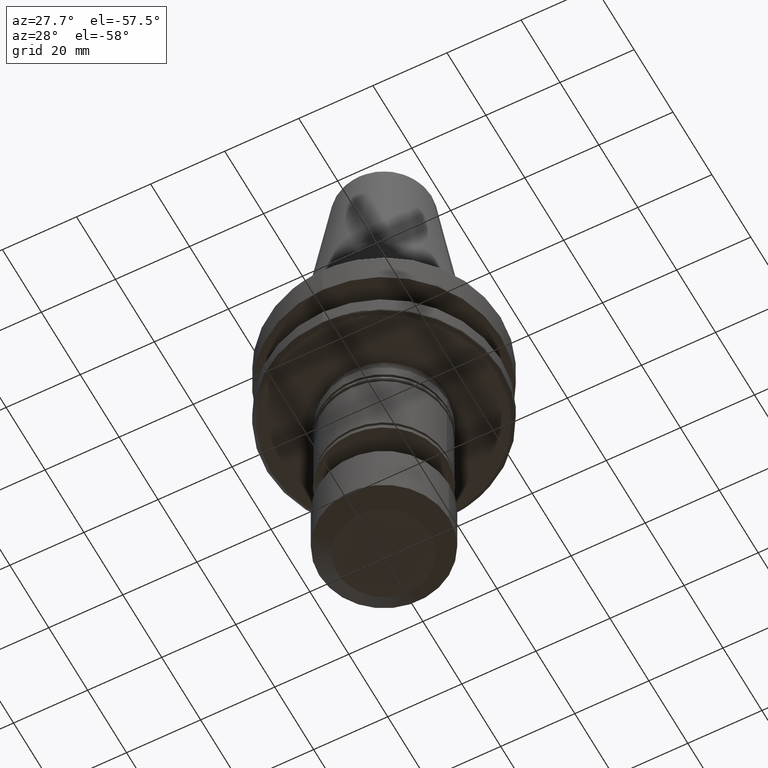
[diagram: clean part render]
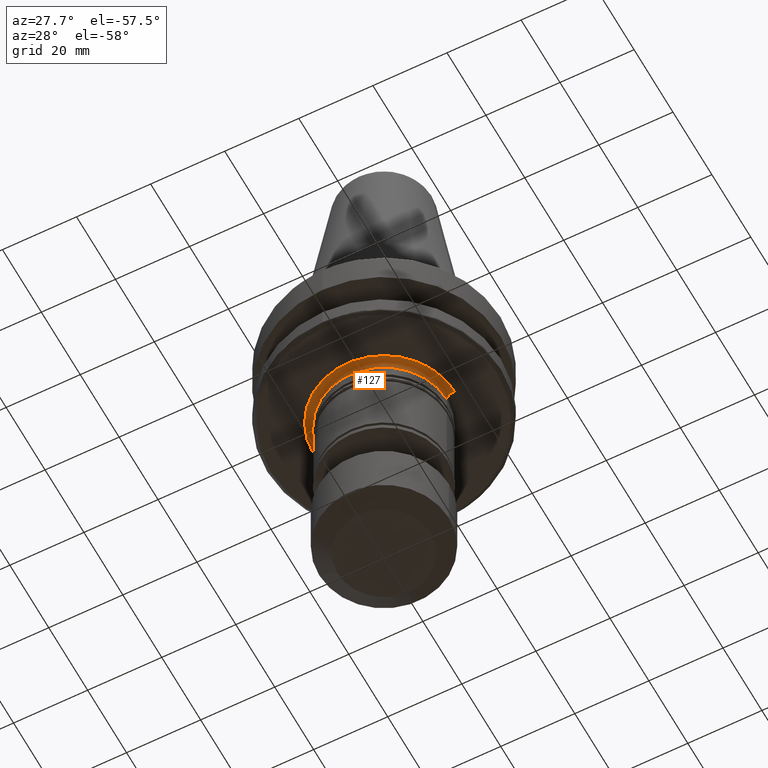
[diagram: same view with one face highlighted and labeled with its STEP entity id]
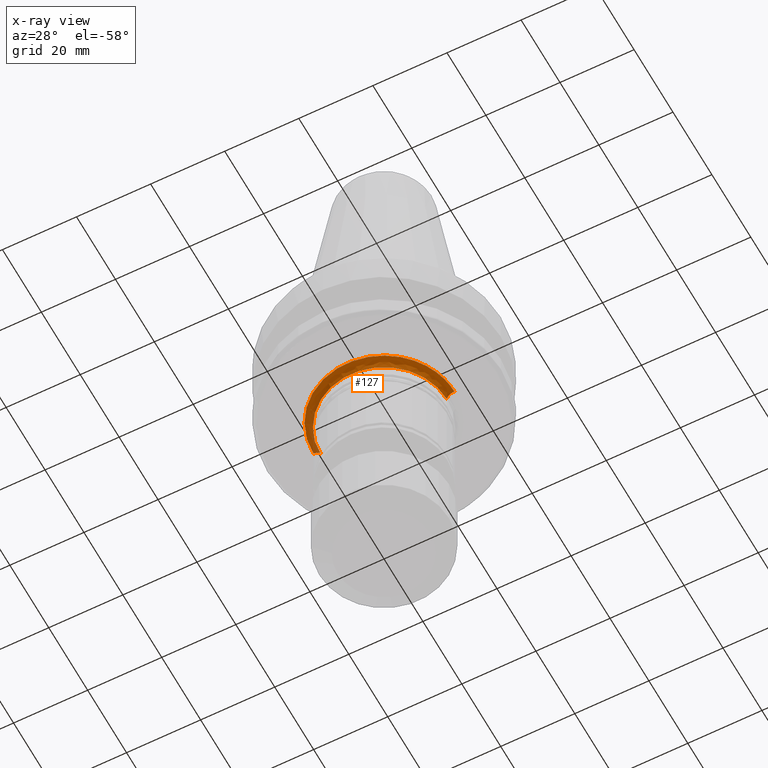
[diagram: x-ray of the same camera — body ghosted, the highlighted face saturated]
A machine part, auxiliary view. The second image highlights one B-rep face of the part: STEP entity #127.
The next image is the same camera in x-ray: the body ghosted, the highlighted face saturated — about 1% of this face is hidden behind the body in this view.
In plain terms, the highlighted face is a freeform B-spline surface patch.
Its self-contained STEP definition (entity closure, byte-faithful):
#2 = CARTESIAN_POINT ( 'NONE',  ( 17.83989247000000600, 0.0000000000000000000, -26.87355915500000200 ) ) ;
#3 = CARTESIAN_POINT ( 'NONE',  ( 18.82787342763041100, -2.551740460006809700, -27.00000000000000400 ) ) ;
#19 = CARTESIAN_POINT ( 'NONE',  ( -12.93609967293618400, -13.91790713444788900, -26.99999999999999600 ) ) ;
#39 = CARTESIAN_POINT ( 'NONE',  ( -10.05590705715107400, -16.12809108847860500, -26.99999999999999600 ) ) ;
#53 = CARTESIAN_POINT ( 'NONE',  ( -5.976684999517479100, -18.04277866453826500, -26.99999999999999300 ) ) ;
#66 = CARTESIAN_POINT ( 'NONE',  ( 0.9881079703280889500, -18.98153755160402800, -27.00000000000000400 ) ) ;
#81 = CARTESIAN_POINT ( 'NONE',  ( 6.566667162542396200, -17.82961824058849500, -26.99999999999999600 ) ) ;
#98 = CARTESIAN_POINT ( 'NONE',  ( 10.28528676935084000, -15.97724112889807900, -27.00000000000000700 ) ) ;
#127 = ADVANCED_FACE ( 'NONE', ( #1787 ), #1301, .F. ) ;
#163 = B_SPLINE_CURVE_WITH_KNOTS ( 'NONE', 3,
 ( #1279, #299, #1294, #3629, #1621, #3939, #1964, #4272, #2283, #312, #2635, #628, #2983, #980, #3312, #1303, #3643, #1639, #3953, #1977, #4293, #2300, #326, #2646, #648, #2997, #995, #3330, #1316, #3651, #1657, #3968, #1989, #4306, #2322, #342, #2664, #663, #3020, #1006, #3343, #1336, #3667, #1669, #3983, #2006, #19, #2337, #365, #2677, #675, #3033, #1027, #3355, #1349, #3688, #1683, #3997, #2023, #39, #2352, #376, #2701, #690, #3047, #1042, #3375, #1361, #3702, #1704, #4016, #2035, #53, #2369, #392, #2713, #711, #3060, #1054, #3390, #1378, #3715, #1719, #4033, #2046, #66, #2387, #409, #2728, #723, #3080, #1066, #3404, #1394, #3731, #1727, #4042, #2064, #81, #2400, #425, #2746, #737, #3091, #1086, #3419, #1406, #3747, #1749, #4056, #2077, #98, #2418, #436, #2760, #754, #3102, #1098, #3440, #1419, #3887, #1608, #3931, #1952, #4261, #2271, #303, #2619, #618, #2970, #968, #3301, #1295, #3632, #1624, #3942, #1968, #4276, #2287, #313, #2638, #631, #2986, #981, #3316, #1305, #3645, #1643, #3955, #1980, #4296, #2304, #330, #2649, #652, #3000, #997, #3332, #1321, #3653, #1659, #3973, #1992, #3, #2323, #346, #2666, #665 ),
 .UNSPECIFIED., .F., .F.,
 ( 4, 1, 1, 1, 1, 1, 2, 2, 1, 1, 1, 1, 1, 2, 2, 1, 1, 1, 1, 1, 2, 2, 1, 1, 1, 1, 1, 2, 2, 1, 1, 1, 2, 2, 1, 1, 1, 2, 2, 1, 1, 1, 2, 2, 1, 1, 1, 2, 2, 1, 1, 2, 2, 1, 1, 2, 2, 1, 2, 2, 2, 1, 2, 2, 1, 1, 2, 2, 1, 1, 1, 2, 2, 1, 1, 1, 2, 2, 1, 1, 1, 2, 2, 1, 1, 1, 2, 2, 1, 1, 1, 2, 2, 1, 1, 1, 1, 2, 2, 1, 1, 1, 1, 1, 2, 2, 1, 1, 1, 1, 1, 2, 2, 1, 1, 1, 1, 1, 2, 2, 4 ),
 ( 0.0000000000000000000, 0.03124999999999462900, 0.04687499999999195100, 0.05468749999999060500, 0.05859374999998992500, 0.06054687499998956400, 0.06152343749998937000, 0.06249999999998917500, 0.09374999999998330500, 0.1093749999999804500, 0.1171874999999790600, 0.1210937499999783900, 0.1230468749999780900, 0.1240234374999779600, 0.1249999999999778400, 0.1562499999999736900, 0.1718749999999716100, 0.1796874999999705500, 0.1835937499999700000, 0.1855468749999697700, 0.1865234374999697200, 0.1874999999999696600, 0.2187499999999664200, 0.2343749999999648600, 0.2421874999999641100, 0.2460937499999637800, 0.2480468749999636100, 0.2490234374999635300, 0.2499999999999634700, 0.2656249999999630300, 0.2734374999999628100, 0.2773437499999627500, 0.2792968749999627500, 0.2812499999999627500, 0.2968749999999628600, 0.3046874999999629200, 0.3085937499999629200, 0.3105468749999629200, 0.3124999999999628600, 0.3281249999999630300, 0.3359374999999630900, 0.3398437499999630900, 0.3417968749999630900, 0.3437499999999630900, 0.3593749999999628600, 0.3671874999999628100, 0.3710937499999628100, 0.3730468749999627500, 0.3749999999999627000, 0.3906249999999622000, 0.3984374999999618600, 0.4023437499999617500, 0.4062499999999616400, 0.4218749999999610900, 0.4296874999999608100, 0.4335937499999607000, 0.4374999999999605300, 0.4531249999999600900, 0.4609374999999598700, 0.4687499999999596400, 0.4999999999999588100, 0.5156249999999583700, 0.5234374999999581400, 0.5312499999999579200, 0.5468749999999573700, 0.5546874999999571500, 0.5585937499999570300, 0.5624999999999569200, 0.5781249999999564800, 0.5859374999999562600, 0.5898437499999561500, 0.5917968749999561500, 0.5937499999999561500, 0.6093749999999555900, 0.6171874999999553700, 0.6210937499999552600, 0.6230468749999552600, 0.6249999999999551500, 0.6406249999999551500, 0.6484374999999551500, 0.6523437499999551500, 0.6542968749999551500, 0.6562499999999551500, 0.6718749999999550400, 0.6796874999999550400, 0.6835937499999550400, 0.6855468749999550400, 0.6874999999999550400, 0.7031249999999550400, 0.7109374999999549200, 0.7148437499999549200, 0.7167968749999549200, 0.7187499999999549200, 0.7343749999999550400, 0.7421874999999551500, 0.7460937499999552600, 0.7480468749999552600, 0.7490234374999553700, 0.7499999999999553700, 0.7812499999999579200, 0.7968749999999590300, 0.8046874999999595900, 0.8085937499999599200, 0.8105468749999600300, 0.8115234374999602500, 0.8124999999999603700, 0.8437499999999653600, 0.8593749999999678000, 0.8671874999999690200, 0.8710937499999696900, 0.8730468749999700200, 0.8740234374999701400, 0.8749999999999702500, 0.9062499999999775700, 0.9218749999999812400, 0.9296874999999830100, 0.9335937499999839000, 0.9355468749999843500, 0.9365234374999845700, 0.9374999999999849000, 1.000000000000000000 ),
 .UNSPECIFIED. ) ;
#299 = CARTESIAN_POINT ( 'NONE',  ( -18.99999999870138000, -0.4221368737846188400, -26.99999999999999600 ) ) ;
#303 = CARTESIAN_POINT ( 'NONE',  ( 13.75067789924464300, -13.11226443721732000, -27.00000000000000000 ) ) ;
#312 = CARTESIAN_POINT ( 'NONE',  ( -18.83384010416438100, -2.507324194782564400, -27.00000000000000400 ) ) ;
#313 = CARTESIAN_POINT ( 'NONE',  ( 16.06800883196779800, -10.17154197523839400, -26.99999999999999300 ) ) ;
#321 = CARTESIAN_POINT ( 'NONE',  ( 17.82842712492255500, 0.0000000000000000000, -27.00000000092554900 ) ) ;
#326 = CARTESIAN_POINT ( 'NONE',  ( -17.28070516621820100, -7.899981536421388600, -26.99999999999999600 ) ) ;
#330 = CARTESIAN_POINT ( 'NONE',  ( 18.20668136008871200, -5.433112444334111200, -27.00000000000000400 ) ) ;
#342 = CARTESIAN_POINT ( 'NONE',  ( -15.22260074624581300, -11.36981763431371600, -27.00000000000000400 ) ) ;
#346 = CARTESIAN_POINT ( 'NONE',  ( 18.94395280106508400, -1.685323045435310300, -27.00000000000000000 ) ) ;
#365 = CARTESIAN_POINT ( 'NONE',  ( -12.62081010798650900, -14.20270700424155300, -27.00000000000000000 ) ) ;
#367 = CARTESIAN_POINT ( 'NONE',  ( -17.83989247000000600, 0.0000000000000000000, -26.87355915500000200 ) ) ;
#376 = CARTESIAN_POINT ( 'NONE',  ( -9.223538256998027800, -16.61147474711575400, -26.99999999999999600 ) ) ;
#390 = CARTESIAN_POINT ( 'NONE',  ( -19.00000000288974200, 0.0000000000000000000, -26.99999999980891000 ) ) ;
#392 = CARTESIAN_POINT ( 'NONE',  ( -5.050812194354394400, -18.31662549618333100, -27.00000000000001100 ) ) ;
#409 = CARTESIAN_POINT ( 'NONE',  ( 1.972653206852868200, -18.89835632397532800, -26.99999999999999300 ) ) ;
#425 = CARTESIAN_POINT ( 'NONE',  ( 6.792797072109534500, -17.74429987204685600, -26.99999999999999600 ) ) ;
#436 = CARTESIAN_POINT ( 'NONE',  ( 10.66709582109774200, -15.72307606274492600, -27.00000000000000000 ) ) ;
#446 = VERTEX_POINT ( 'NONE', #2089 ) ;
#618 = CARTESIAN_POINT ( 'NONE',  ( 13.89627315902758500, -12.95744331846185200, -27.00000000000000000 ) ) ;
#628 = CARTESIAN_POINT ( 'NONE',  ( -18.64690099608797900, -3.700641545233175600, -27.00000000000000400 ) ) ;
#631 = CARTESIAN_POINT ( 'NONE',  ( 16.84197296443884500, -8.797100175749758200, -26.99999999999999600 ) ) ;
#644 = CARTESIAN_POINT ( 'NONE',  ( 19.00000000288974200, 0.0000000000000000000, -26.99999999980891000 ) ) ;
#648 = CARTESIAN_POINT ( 'NONE',  ( -17.13004068470947400, -8.219711983950169600, -27.00000000000000400 ) ) ;
#652 = CARTESIAN_POINT ( 'NONE',  ( 18.23054275304248900, -5.352342203467303600, -27.00000000000001100 ) ) ;
#663 = CARTESIAN_POINT ( 'NONE',  ( -15.00523766573508200, -11.65969791724253900, -27.00000000000000000 ) ) ;
#665 = CARTESIAN_POINT ( 'NONE',  ( 19.00000000288974200, 0.0000000000000000000, -26.99999999980891000 ) ) ;
#675 = CARTESIAN_POINT ( 'NONE',  ( -12.52650221615078000, -14.28596007415518100, -26.99999999999999300 ) ) ;
#690 = CARTESIAN_POINT ( 'NONE',  ( -9.022114061999330300, -16.72134859768298300, -26.99999999999999600 ) ) ;
#711 = CARTESIAN_POINT ( 'NONE',  ( -4.772048338358859900, -18.39122293168850000, -27.00000000000000000 ) ) ;
#723 = CARTESIAN_POINT ( 'NONE',  ( 2.755288336480504500, -18.80326934213314500, -27.00000000000000000 ) ) ;
#737 = CARTESIAN_POINT ( 'NONE',  ( 7.235286297040502700, -17.57253164344573500, -27.00000000000000000 ) ) ;
#754 = CARTESIAN_POINT ( 'NONE',  ( 10.78211383329210800, -15.64442189752150000, -26.99999999999999600 ) ) ;
#789 = EDGE_CURVE ( 'NONE', #2218, #1558, #2462, .T. ) ;
#870 = EDGE_LOOP ( 'NONE', ( #2785, #2448, #2113, #3817 ) ) ;
#901 = CARTESIAN_POINT ( 'NONE',  ( 16.99999999976114000, -1.144868762464558800E-009, -28.99999999902229000 ) ) ;
#923 = CIRCLE ( 'NONE', #2693, 16.99999999968151700 ) ;
#968 = CARTESIAN_POINT ( 'NONE',  ( 14.17441763797580200, -12.65668151226580600, -27.00000000000000700 ) ) ;
#980 = CARTESIAN_POINT ( 'NONE',  ( -18.35328467181732700, -4.917548374991579200, -26.99999999999999300 ) ) ;
#981 = CARTESIAN_POINT ( 'NONE',  ( 17.02048087885902200, -8.444271607336872900, -27.00000000000000000 ) ) ;
#989 = CARTESIAN_POINT ( 'NONE',  ( 16.99999999976114000, -1.144868762464559000E-009, -28.99999999902229000 ) ) ;
#995 = CARTESIAN_POINT ( 'NONE',  ( -17.09339680079163400, -8.295543533975758200, -27.00000000000000400 ) ) ;
#997 = CARTESIAN_POINT ( 'NONE',  ( 18.37380115641621400, -4.861299159803975200, -27.00000000000000400 ) ) ;
#1006 = CARTESIAN_POINT ( 'NONE',  ( -14.33440175904801400, -12.47282072963544100, -26.99999999999999300 ) ) ;
#1027 = CARTESIAN_POINT ( 'NONE',  ( -11.81689856671096100, -14.88560492205788100, -27.00000000000000000 ) ) ;
#1042 = CARTESIAN_POINT ( 'NONE',  ( -8.607709595140995900, -16.94256655092059900, -26.99999999999998900 ) ) ;
#1050 = EDGE_CURVE ( 'NONE', #1558, #3035, #923, .T. ) ;
#1054 = CARTESIAN_POINT ( 'NONE',  ( -3.722150704077646500, -18.63911082678030000, -26.99999999999999600 ) ) ;
#1066 = CARTESIAN_POINT ( 'NONE',  ( 4.008523863383761200, -18.57416904238117900, -27.00000000000000700 ) ) ;
#1086 = CARTESIAN_POINT ( 'NONE',  ( 8.353009528354837300, -17.06722654665473700, -27.00000000000000000 ) ) ;
#1098 = CARTESIAN_POINT ( 'NONE',  ( 11.53731706233572600, -15.10333107730182300, -27.00000000000000400 ) ) ;
#1128 =( BOUNDED_CURVE ( )  B_SPLINE_CURVE ( 3, ( #2700, #2033, #2367, #390 ),
 .UNSPECIFIED., .F., .F. ) 
 B_SPLINE_CURVE_WITH_KNOTS ( ( 4, 4 ),
 ( 0.06314145682741952000, 0.9368585430000024900 ),
 .UNSPECIFIED. ) 
 CURVE ( )  GEOMETRIC_REPRESENTATION_ITEM ( )  RATIONAL_B_SPLINE_CURVE ( ( 0.9565783022766758400, 0.7697947703959736600, 0.7697947703590799500, 0.9565783021659948200 ) ) 
 REPRESENTATION_ITEM ( '' )  );
#1188 = CARTESIAN_POINT ( 'NONE',  ( 19.19966683299999800, 0.0000000000000000000, -27.00999166900000500 ) ) ;
#1251 = CARTESIAN_POINT ( 'NONE',  ( -17.00999166900000500, 0.0000000000000000000, -29.19966683299999800 ) ) ;
#1279 = CARTESIAN_POINT ( 'NONE',  ( -19.00000000288974200, 0.0000000000000000000, -26.99999999980891000 ) ) ;
#1294 = CARTESIAN_POINT ( 'NONE',  ( -18.97898229958777300, -1.054005015833168400, -27.00000000000000000 ) ) ;
#1295 = CARTESIAN_POINT ( 'NONE',  ( 14.85324008999030600, -11.85021415721527700, -27.00000000000000000 ) ) ;
#1301 =( BOUNDED_SURFACE ( )  B_SPLINE_SURFACE ( 3, 3, ( 
 ( #1188, #3941, #2808, #2998 ),
 ( #2, #2091, #2285, #367 ),
 ( #1923, #2168, #2477, #1823 ),
 ( #4153, #1403, #3422, #1251 ) ),
 .UNSPECIFIED., .F., .F., .T. ) 
 B_SPLINE_SURFACE_WITH_KNOTS ( ( 4, 4 ),
 ( 4, 4 ),
 ( 0.0000000000000000000, 1.000000000000000000 ),
 ( 0.0000000000000000000, 1.000000000000000000 ),
 .UNSPECIFIED. ) 
 GEOMETRIC_REPRESENTATION_ITEM ( )  RATIONAL_B_SPLINE_SURFACE ( (
 ( 1.000000000000000000, 0.3333333333333330400, 0.3333333333333330400, 1.000000000000000000),
 ( 0.7553208711179720800, 0.2517736237059909900, 0.2517736237059909900, 0.7553208711179720800),
 ( 0.7553208711179720800, 0.2517736237059909900, 0.2517736237059909900, 0.7553208711179720800),
 ( 1.000000000000000000, 0.3333333333333330400, 0.3333333333333330400, 1.000000000000000000) ) ) 
 REPRESENTATION_ITEM ( '' )  SURFACE ( )  );
#1303 = CARTESIAN_POINT ( 'NONE',  ( -18.26904363100247200, -5.219536342855782600, -27.00000000000000000 ) ) ;
#1305 = CARTESIAN_POINT ( 'NONE',  ( 17.06210280230539000, -8.359723423768723900, -27.00000000000000000 ) ) ;
#1316 = CARTESIAN_POINT ( 'NONE',  ( -16.81442832844117400, -8.867875779799195600, -27.00000000000000400 ) ) ;
#1321 = CARTESIAN_POINT ( 'NONE',  ( 18.70537802996545900, -3.348161637068058900, -26.99999999999999300 ) ) ;
#1336 = CARTESIAN_POINT ( 'NONE',  ( -14.06386403114322000, -12.77533975426495200, -27.00000000000000000 ) ) ;
#1349 = CARTESIAN_POINT ( 'NONE',  ( -11.07213804038960500, -15.44090301338916000, -27.00000000000000000 ) ) ;
#1361 = CARTESIAN_POINT ( 'NONE',  ( -7.495861537186149400, -17.46067113254051900, -27.00000000000000000 ) ) ;
#1378 = CARTESIAN_POINT ( 'NONE',  ( -2.755059189152213600, -18.80021988463678200, -26.99999999999999300 ) ) ;
#1394 = CARTESIAN_POINT ( 'NONE',  ( 4.486358328588387700, -18.46299426659339500, -26.99999999999999300 ) ) ;
#1403 = CARTESIAN_POINT ( 'NONE',  ( 17.00999166900000900, -34.01998333899999900, -29.19966683299999800 ) ) ;
#1406 = CARTESIAN_POINT ( 'NONE',  ( 8.773922934773031200, -16.85290657588839000, -27.00000000000000400 ) ) ;
#1419 = CARTESIAN_POINT ( 'NONE',  ( 12.25813780936508500, -14.51729212143695900, -27.00000000000000000 ) ) ;
#1558 = VERTEX_POINT ( 'NONE', #901 ) ;
#1608 = CARTESIAN_POINT ( 'NONE',  ( 12.42628597206853200, -14.37321509949719600, -27.00000000000000000 ) ) ;
#1621 = CARTESIAN_POINT ( 'NONE',  ( -18.87783462260351900, -2.155679185493732100, -27.00000000000000000 ) ) ;
#1624 = CARTESIAN_POINT ( 'NONE',  ( 15.11434927604005400, -11.51343782538322300, -27.00000000000000000 ) ) ;
#1639 = CARTESIAN_POINT ( 'NONE',  ( -18.24834978396615500, -5.291306758435690800, -27.00000000000000400 ) ) ;
#1643 = CARTESIAN_POINT ( 'NONE',  ( 17.31478447282135800, -7.841500323296016500, -27.00000000000000000 ) ) ;
#1657 = CARTESIAN_POINT ( 'NONE',  ( -15.81210197551417800, -10.54231729811928100, -26.99999999999998600 ) ) ;
#1659 = CARTESIAN_POINT ( 'NONE',  ( 18.80312237389154700, -2.729257738639256000, -27.00000000000000400 ) ) ;
#1669 = CARTESIAN_POINT ( 'NONE',  ( -13.98293103150276000, -12.86387973502843500, -27.00000000000000000 ) ) ;
#1683 = CARTESIAN_POINT ( 'NONE',  ( -10.89125999504675400, -15.56863370260074200, -26.99999999999999600 ) ) ;
#1704 = CARTESIAN_POINT ( 'NONE',  ( -7.059012966115356700, -17.64027192894039000, -27.00000000000000000 ) ) ;
#1719 = CARTESIAN_POINT ( 'NONE',  ( -1.580618868013306200, -18.95069043107732700, -27.00000000000000700 ) ) ;
#1727 = CARTESIAN_POINT ( 'NONE',  ( 5.051620366920532000, -18.32023476630657300, -27.00000000000000400 ) ) ;
#1749 = CARTESIAN_POINT ( 'NONE',  ( 8.900700148574468800, -16.78629183651589700, -27.00000000000000700 ) ) ;
#1761 = DIRECTION ( 'NONE',  ( -0.0000000000000000000, -2.040851148203040100E-016, -1.000000000000000000 ) ) ;
#1787 = FACE_OUTER_BOUND ( 'NONE', #870, .T. ) ;
#1823 = CARTESIAN_POINT ( 'NONE',  ( -16.87355915500000200, 0.0000000000000000000, -27.83989247000000900 ) ) ;
#1923 = CARTESIAN_POINT ( 'NONE',  ( 16.87355915500000200, 0.0000000000000000000, -27.83989247000000900 ) ) ;
#1952 = CARTESIAN_POINT ( 'NONE',  ( 12.74922568110119900, -14.09159734792025300, -27.00000000000000000 ) ) ;
#1964 = CARTESIAN_POINT ( 'NONE',  ( -18.84392716270540200, -2.430549279838639000, -27.00000000000000000 ) ) ;
#1968 = CARTESIAN_POINT ( 'NONE',  ( 15.17560259629234700, -11.43247397017158900, -27.00000000000000000 ) ) ;
#1977 = CARTESIAN_POINT ( 'NONE',  ( -18.08913933228954500, -5.837288427521613700, -26.99999999999999600 ) ) ;
#1980 = CARTESIAN_POINT ( 'NONE',  ( 17.95715274824476600, -6.218532844939269400, -26.99999999999998900 ) ) ;
#1989 = CARTESIAN_POINT ( 'NONE',  ( -15.35703561195464300, -11.18801348111496800, -27.00000000000000400 ) ) ;
#1992 = CARTESIAN_POINT ( 'NONE',  ( 18.82383694836017100, -2.581345876170217000, -27.00000000000000000 ) ) ;
#2006 = CARTESIAN_POINT ( 'NONE',  ( -13.36782249503821900, -13.50941152397516200, -26.99999999999999600 ) ) ;
#2023 = CARTESIAN_POINT ( 'NONE',  ( -10.51682981061453500, -15.82818159956113700, -27.00000000000000400 ) ) ;
#2033 = CARTESIAN_POINT ( 'NONE',  ( -17.00000000059827300, 0.0000000000000000000, -27.82842712539360600 ) ) ;
#2035 = CARTESIAN_POINT ( 'NONE',  ( -6.522692070836784600, -17.84949160225397000, -27.00000000000000000 ) ) ;
#2046 = CARTESIAN_POINT ( 'NONE',  ( 0.3956503577087541700, -19.00001145209794700, -26.99999999999999300 ) ) ;
#2064 = CARTESIAN_POINT ( 'NONE',  ( 6.248781001081932900, -17.94487876484753000, -27.00000000000000000 ) ) ;
#2077 = CARTESIAN_POINT ( 'NONE',  ( 9.742511078034482400, -16.31931641159118800, -26.99999999999999300 ) ) ;
#2089 = CARTESIAN_POINT ( 'NONE',  ( -19.00000000288974200, 0.0000000000000000000, -26.99999999980891000 ) ) ;
#2091 = CARTESIAN_POINT ( 'NONE',  ( 17.83989247000000600, -35.67978493899999400, -26.87355915500000600 ) ) ;
#2093 = CARTESIAN_POINT ( 'NONE',  ( -16.99999999976113700, -1.743379142380315100E-009, -28.99999999916196100 ) ) ;
#2113 = ORIENTED_EDGE ( 'NONE', *, *, #3923, .F. ) ;
#2168 = CARTESIAN_POINT ( 'NONE',  ( 16.87355915500000200, -33.74711830900000800, -27.83989247000000200 ) ) ;
#2218 = VERTEX_POINT ( 'NONE', #2735 ) ;
#2271 = CARTESIAN_POINT ( 'NONE',  ( 13.54450475052884600, -13.32656087863417900, -27.00000000000000000 ) ) ;
#2283 = CARTESIAN_POINT ( 'NONE',  ( -18.83534767224692200, -2.495962329954723100, -26.99999999999998900 ) ) ;
#2285 = CARTESIAN_POINT ( 'NONE',  ( -17.83989247000000600, -35.67978493899999400, -26.87355915500000600 ) ) ;
#2287 = CARTESIAN_POINT ( 'NONE',  ( 15.56181564030314700, -10.91760665012475300, -27.00000000000000000 ) ) ;
#2295 = CARTESIAN_POINT ( 'NONE',  ( 17.00000000076189400, 0.0000000000000000000, -27.82842712522997900 ) ) ;
#2300 = CARTESIAN_POINT ( 'NONE',  ( -17.47341859503224600, -7.470551548022929600, -26.99999999999998600 ) ) ;
#2304 = CARTESIAN_POINT ( 'NONE',  ( 18.17278064495296500, -5.545997506374877900, -26.99999999999999600 ) ) ;
#2322 = CARTESIAN_POINT ( 'NONE',  ( -15.24512988426525000, -11.33959180210126000, -27.00000000000000400 ) ) ;
#2323 = CARTESIAN_POINT ( 'NONE',  ( 18.83010693086637500, -2.535198906934527800, -27.00000000000000400 ) ) ;
#2337 = CARTESIAN_POINT ( 'NONE',  ( -12.71602844935146800, -14.11790459500529600, -27.00000000000000000 ) ) ;
#2352 = CARTESIAN_POINT ( 'NONE',  ( -9.503447283867332700, -16.45429523680513000, -26.99999999999999300 ) ) ;
#2367 = CARTESIAN_POINT ( 'NONE',  ( -17.82842712477878400, 0.0000000000000000000, -27.00000000092553900 ) ) ;
#2369 = CARTESIAN_POINT ( 'NONE',  ( -5.330022215956572200, -18.23888128893069900, -27.00000000000000000 ) ) ;
#2387 = CARTESIAN_POINT ( 'NONE',  ( 1.579038697031719200, -18.93532703103660400, -27.00000000000000000 ) ) ;
#2400 = CARTESIAN_POINT ( 'NONE',  ( 6.702410870706195600, -17.77863823753238000, -27.00000000000000000 ) ) ;
#2418 = CARTESIAN_POINT ( 'NONE',  ( 10.55309069376088400, -15.80022270062921300, -27.00000000000000000 ) ) ;
#2448 = ORIENTED_EDGE ( 'NONE', *, *, #3338, .F. ) ;
#2462 =( BOUNDED_CURVE ( )  B_SPLINE_CURVE ( 3, ( #644, #321, #2295, #989 ),
 .UNSPECIFIED., .F., .F. ) 
 B_SPLINE_CURVE_WITH_KNOTS ( ( 4, 4 ),
 ( 0.06314145700000115000, 0.9368585430862942400 ),
 .UNSPECIFIED. ) 
 CURVE ( )  GEOMETRIC_REPRESENTATION_ITEM ( )  RATIONAL_B_SPLINE_CURVE ( ( 0.9565783021659921600, 0.7697947703775261900, 0.7697947703959745500, 0.9565783022213372200 ) ) 
 REPRESENTATION_ITEM ( '' )  );
#2477 = CARTESIAN_POINT ( 'NONE',  ( -16.87355915500000200, -33.74711830900000800, -27.83989247000000200 ) ) ;
#2619 = CARTESIAN_POINT ( 'NONE',  ( 13.83815302746833700, -13.01949545293080300, -27.00000000000000000 ) ) ;
#2635 = CARTESIAN_POINT ( 'NONE',  ( -18.76844405789272200, -2.995714258420937500, -26.99999999999999600 ) ) ;
#2638 = CARTESIAN_POINT ( 'NONE',  ( 16.59463958246680100, -9.261802548763830200, -27.00000000000000000 ) ) ;
#2646 = CARTESIAN_POINT ( 'NONE',  ( -17.18084593186935300, -8.113358219894870200, -26.99999999999999300 ) ) ;
#2649 = CARTESIAN_POINT ( 'NONE',  ( 18.22102314199545200, -5.384660044780719800, -26.99999999999999600 ) ) ;
#2664 = CARTESIAN_POINT ( 'NONE',  ( -15.21217264478772600, -11.38376887957388200, -27.00000000000000400 ) ) ;
#2666 = CARTESIAN_POINT ( 'NONE',  ( 18.99999999870136900, -0.8446150808750904100, -27.00000000000000400 ) ) ;
#2677 = CARTESIAN_POINT ( 'NONE',  ( -12.55713074647969300, -14.25903954636672600, -26.99999999999999600 ) ) ;
#2693 = AXIS2_PLACEMENT_3D ( 'NONE', #3756, #1761, #4074 ) ;
#2700 = CARTESIAN_POINT ( 'NONE',  ( -16.99999999976113700, -1.743379142380314900E-009, -28.99999999916196100 ) ) ;
#2701 = CARTESIAN_POINT ( 'NONE',  ( -9.102788858291022600, -16.67756827356617000, -26.99999999999999600 ) ) ;
#2713 = CARTESIAN_POINT ( 'NONE',  ( -4.864212440253493400, -18.36705501776733800, -27.00000000000000400 ) ) ;
#2728 = CARTESIAN_POINT ( 'NONE',  ( 2.170993963812930100, -18.87657544426776800, -26.99999999999999600 ) ) ;
#2735 = CARTESIAN_POINT ( 'NONE',  ( 19.00000000288974200, 0.0000000000000000000, -26.99999999980891000 ) ) ;
#2746 = CARTESIAN_POINT ( 'NONE',  ( 6.838985438755778500, -17.72654675113208700, -26.99999999999999600 ) ) ;
#2760 = CARTESIAN_POINT ( 'NONE',  ( 10.74292857640573500, -15.67136017144480900, -27.00000000000000000 ) ) ;
#2785 = ORIENTED_EDGE ( 'NONE', *, *, #789, .F. ) ;
#2808 = CARTESIAN_POINT ( 'NONE',  ( -19.19966683299999800, -38.39933366700000800, -27.00999166900000100 ) ) ;
#2970 = CARTESIAN_POINT ( 'NONE',  ( 13.92655844991777400, -12.92488202336476300, -27.00000000000000000 ) ) ;
#2983 = CARTESIAN_POINT ( 'NONE',  ( -18.45886306239444600, -4.513504757659070800, -27.00000000000001100 ) ) ;
#2986 = CARTESIAN_POINT ( 'NONE',  ( 16.96164415710553200, -8.562290824298541400, -27.00000000000000700 ) ) ;
#2997 = CARTESIAN_POINT ( 'NONE',  ( -17.10807937235835800, -8.265220473327845600, -27.00000000000000000 ) ) ;
#2998 = CARTESIAN_POINT ( 'NONE',  ( -19.19966683299999800, 0.0000000000000000000, -27.00999166900000500 ) ) ;
#3000 = CARTESIAN_POINT ( 'NONE',  ( 18.23581871257636400, -5.334334400985058600, -27.00000000000000700 ) ) ;
#3020 = CARTESIAN_POINT ( 'NONE',  ( -14.70342821090818000, -12.04135660148929300, -26.99999999999999600 ) ) ;
#3033 = CARTESIAN_POINT ( 'NONE',  ( -12.22633842749229400, -14.54793583874914600, -26.99999999999999300 ) ) ;
#3035 = VERTEX_POINT ( 'NONE', #2093 ) ;
#3047 = CARTESIAN_POINT ( 'NONE',  ( -8.982859829331625100, -16.74247329785012200, -27.00000000000000000 ) ) ;
#3060 = CARTESIAN_POINT ( 'NONE',  ( -4.296422029581640900, -18.51203134561971500, -26.99999999999999300 ) ) ;
#3080 = CARTESIAN_POINT ( 'NONE',  ( 3.336331063051950700, -18.71202185826399100, -27.00000000000000700 ) ) ;
#3091 = CARTESIAN_POINT ( 'NONE',  ( 7.756756569545707700, -17.35176389500508200, -27.00000000000000400 ) ) ;
#3102 = CARTESIAN_POINT ( 'NONE',  ( 11.10963736971287100, -15.41757854953734800, -27.00000000000000000 ) ) ;
#3301 = CARTESIAN_POINT ( 'NONE',  ( 14.49539480158855300, -12.29099592564075400, -27.00000000000000000 ) ) ;
#3312 = CARTESIAN_POINT ( 'NONE',  ( -18.29760562059618300, -5.118973186437734100, -26.99999999999999600 ) ) ;
#3316 = CARTESIAN_POINT ( 'NONE',  ( 17.04548257220055200, -8.393560255517011000, -26.99999999999999300 ) ) ;
#3330 = CARTESIAN_POINT ( 'NONE',  ( -17.08690866409422800, -8.308904162355929700, -27.00000000000000400 ) ) ;
#3332 = CARTESIAN_POINT ( 'NONE',  ( 18.54813432554327300, -4.167539016597037200, -26.99999999999999300 ) ) ;
#3338 = EDGE_CURVE ( 'NONE', #446, #2218, #163, .T. ) ;
#3343 = CARTESIAN_POINT ( 'NONE',  ( -14.14565967781072700, -12.68510170950640900, -27.00000000000000400 ) ) ;
#3355 = CARTESIAN_POINT ( 'NONE',  ( -11.32308114630186000, -15.25919629765577100, -26.99999999999999600 ) ) ;
#3375 = CARTESIAN_POINT ( 'NONE',  ( -8.100339738698545800, -17.19405306295063000, -27.00000000000000000 ) ) ;
#3390 = CARTESIAN_POINT ( 'NONE',  ( -3.142599746116648600, -18.73935438460556200, -26.99999999999999300 ) ) ;
#3404 = CARTESIAN_POINT ( 'NONE',  ( 4.295387124811340700, -18.50836124599524300, -27.00000000000000000 ) ) ;
#3419 = CARTESIAN_POINT ( 'NONE',  ( 8.648103751314336000, -16.91821412868715100, -27.00000000000000400 ) ) ;
#3422 = CARTESIAN_POINT ( 'NONE',  ( -17.00999166900000900, -34.01998333899999900, -29.19966683299999800 ) ) ;
#3440 = CARTESIAN_POINT ( 'NONE',  ( 12.02049458083726200, -14.71607709524455200, -27.00000000000000400 ) ) ;
#3629 = CARTESIAN_POINT ( 'NONE',  ( -18.91768067717306700, -1.788844469790152000, -26.99999999999999600 ) ) ;
#3632 = CARTESIAN_POINT ( 'NONE',  ( 15.02800571690457200, -11.62628612699515300, -26.99999999999999600 ) ) ;
#3643 = CARTESIAN_POINT ( 'NONE',  ( -18.25664796460877400, -5.262602856469586100, -27.00000000000001100 ) ) ;
#3645 = CARTESIAN_POINT ( 'NONE',  ( 17.07127253458234500, -8.340978395371657000, -27.00000000000000000 ) ) ;
#3651 = CARTESIAN_POINT ( 'NONE',  ( -16.38142935094447900, -9.658670255387566100, -26.99999999999999600 ) ) ;
#3653 = CARTESIAN_POINT ( 'NONE',  ( 18.77246363395337900, -2.935975310856668000, -27.00000000000000400 ) ) ;
#3667 = CARTESIAN_POINT ( 'NONE',  ( -14.00913222596929400, -12.83533411342768800, -26.99999999999999600 ) ) ;
#3688 = CARTESIAN_POINT ( 'NONE',  ( -10.96372648163268500, -15.51768682611797900, -27.00000000000000000 ) ) ;
#3702 = CARTESIAN_POINT ( 'NONE',  ( -7.234110871753088600, -17.56919683498363900, -27.00000000000000000 ) ) ;
#3715 = CARTESIAN_POINT ( 'NONE',  ( -2.562043726374317700, -18.82750248834262400, -26.99999999999999600 ) ) ;
#3731 = CARTESIAN_POINT ( 'NONE',  ( 4.583248754024137600, -18.43917207651678300, -26.99999999999999300 ) ) ;
#3747 = CARTESIAN_POINT ( 'NONE',  ( 8.857657997248114900, -16.80904707669908800, -26.99999999999999600 ) ) ;
#3756 = CARTESIAN_POINT ( 'NONE',  ( 0.0000000000000000000, 0.0000000000000000000, -28.99999999888261800 ) ) ;
#3817 = ORIENTED_EDGE ( 'NONE', *, *, #1050, .F. ) ;
#3887 = CARTESIAN_POINT ( 'NONE',  ( 12.35913943643637900, -14.43099327920964600, -27.00000000000000000 ) ) ;
#3923 = EDGE_CURVE ( 'NONE', #3035, #446, #1128, .T. ) ;
#3931 = CARTESIAN_POINT ( 'NONE',  ( 12.46114130944966400, -14.34300238550878800, -27.00000000000000000 ) ) ;
#3939 = CARTESIAN_POINT ( 'NONE',  ( -18.85561278447821500, -2.338950290526792500, -27.00000000000000000 ) ) ;
#3941 = CARTESIAN_POINT ( 'NONE',  ( 19.19966683299999800, -38.39933366700000800, -27.00999166900000100 ) ) ;
#3942 = CARTESIAN_POINT ( 'NONE',  ( 15.15113096117205200, -11.46488477758486900, -27.00000000000000000 ) ) ;
#3953 = CARTESIAN_POINT ( 'NONE',  ( -18.24471439458031000, -5.303834736368882500, -27.00000000000000400 ) ) ;
#3955 = CARTESIAN_POINT ( 'NONE',  ( 17.63705260358381800, -7.102513206544551300, -26.99999999999998600 ) ) ;
#3968 = CARTESIAN_POINT ( 'NONE',  ( -15.51139781237799100, -10.97440419145480200, -27.00000000000000000 ) ) ;
#3973 = CARTESIAN_POINT ( 'NONE',  ( 18.81773072834666700, -2.625742850252615700, -27.00000000000000400 ) ) ;
#3983 = CARTESIAN_POINT ( 'NONE',  ( -13.72343698529587600, -13.14469981895641800, -27.00000000000000400 ) ) ;
#3997 = CARTESIAN_POINT ( 'NONE',  ( -10.85621477817940300, -15.59309651626852600, -27.00000000000000000 ) ) ;
#4016 = CARTESIAN_POINT ( 'NONE',  ( -6.973100566608407800, -17.67441955117295600, -26.99999999999999600 ) ) ;
#4033 = CARTESIAN_POINT ( 'NONE',  ( -0.7913007154175142300, -18.99997709298782700, -27.00000000000000000 ) ) ;
#4042 = CARTESIAN_POINT ( 'NONE',  ( 5.608405308514698500, -18.16062854854474300, -27.00000000000000000 ) ) ;
#4056 = CARTESIAN_POINT ( 'NONE',  ( 9.264987041198343900, -16.59201824159451300, -26.99999999999999600 ) ) ;
#4074 = DIRECTION ( 'NONE',  ( 0.0000000000000000000, 1.000000000000000000, -2.040851148246242400E-016 ) ) ;
#4153 = CARTESIAN_POINT ( 'NONE',  ( 17.00999166900000500, 0.0000000000000000000, -29.19966683299999800 ) ) ;
#4261 = CARTESIAN_POINT ( 'NONE',  ( 13.12390038832193000, -13.74649567379446300, -26.99999999999998900 ) ) ;
#4272 = CARTESIAN_POINT ( 'NONE',  ( -18.83879588850774300, -2.469798154571277900, -27.00000000000000400 ) ) ;
#4276 = CARTESIAN_POINT ( 'NONE',  ( 15.18869326016916000, -11.41507479160274500, -27.00000000000000400 ) ) ;
#4293 = CARTESIAN_POINT ( 'NONE',  ( -17.83082529312579800, -6.600985085420052900, -27.00000000000000400 ) ) ;
#4296 = CARTESIAN_POINT ( 'NONE',  ( 18.10323298526810000, -5.771085482787806400, -27.00000000000000000 ) ) ;
#4306 = CARTESIAN_POINT ( 'NONE',  ( -15.27885198202913700, -11.29420958669315700, -27.00000000000000000 ) ) ;